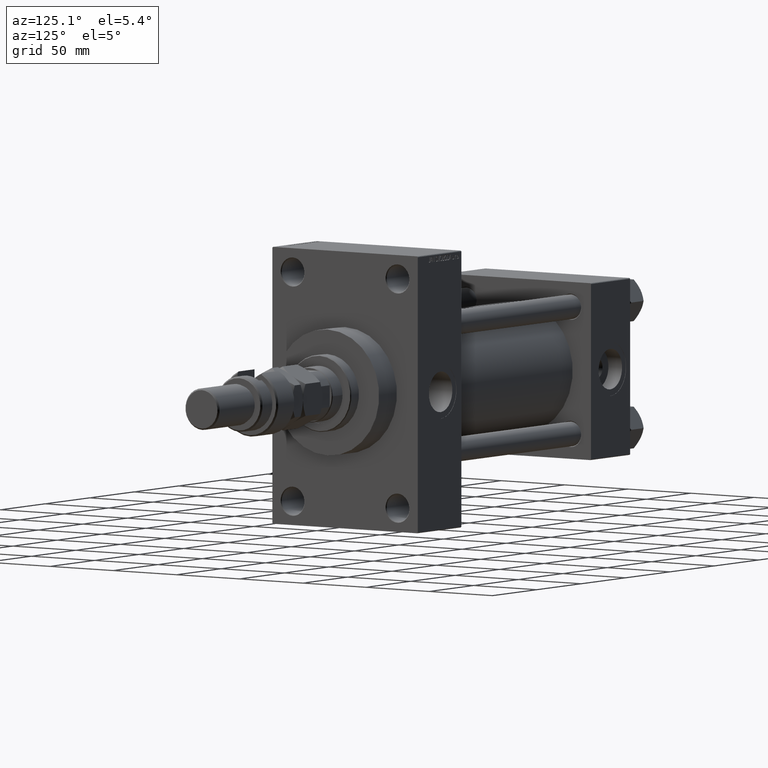
[diagram: clean part render]
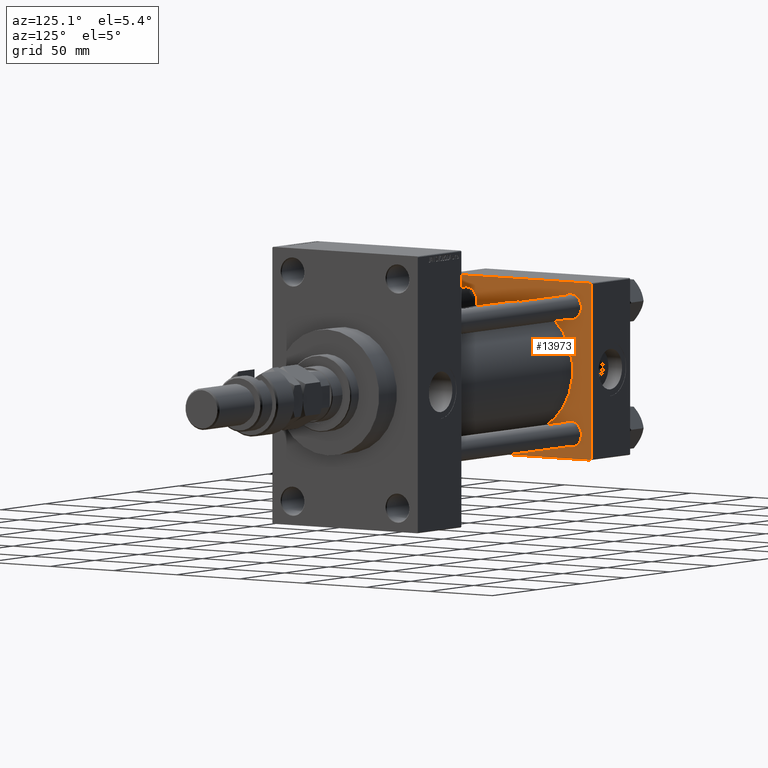
[diagram: same view with one face highlighted and labeled with its STEP entity id]
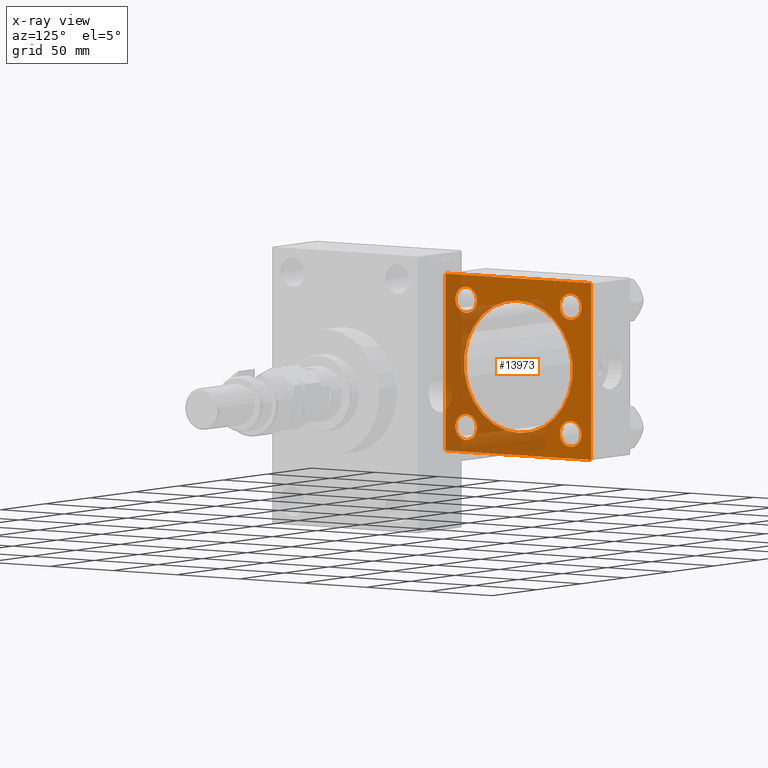
[diagram: x-ray of the same camera — body ghosted, the highlighted face saturated]
A machine part, auxiliary view. The second image highlights one B-rep face of the part: STEP entity #13973.
The next image is the same camera in x-ray: the body ghosted, the highlighted face saturated — about 45% of this face is hidden behind the body in this view.
In plain terms, the highlighted planar face has unit normal (-1, 0, 0).
Its self-contained STEP definition (entity closure, byte-faithful):
#216 = DIRECTION ( 'NONE',  ( 0.000000000000000000, 0.000000000000000000, 1.000000000000000000 ) ) ;
#304 = VERTEX_POINT ( 'NONE', #37298 ) ;
#805 = VERTEX_POINT ( 'NONE', #25521 ) ;
#1087 = DIRECTION ( 'NONE',  ( -1.000000000000000000, 0.000000000000000000, -0.000000000000000000 ) ) ;
#1795 = DIRECTION ( 'NONE',  ( 0.000000000000000000, -0.7071067811865573427, 0.7071067811865376918 ) ) ;
#2185 = EDGE_CURVE ( 'NONE', #47459, #6114, #3302, .T. ) ;
#2341 = CARTESIAN_POINT ( 'NONE',  ( 43.99999999999998579, -2.602085213965210642E-15, 0.000000000000000000 ) ) ;
#2685 = AXIS2_PLACEMENT_3D ( 'NONE', #42233, #25325, #46178 ) ;
#3089 = EDGE_CURVE ( 'NONE', #22003, #19756, #7575, .T. ) ;
#3099 = ORIENTED_EDGE ( 'NONE', *, *, #3089, .F. ) ;
#3132 = ORIENTED_EDGE ( 'NONE', *, *, #13571, .T. ) ;
#3302 = CIRCLE ( 'NONE', #4179, 8.500000000000007105 ) ;
#4036 = ORIENTED_EDGE ( 'NONE', *, *, #2185, .T. ) ;
#4099 = CARTESIAN_POINT ( 'NONE',  ( 44.00000000000000000, -57.00000000000003553, 57.49999999999999289 ) ) ;
#4179 = AXIS2_PLACEMENT_3D ( 'NONE', #41469, #17894, #25841 ) ;
#4331 = CIRCLE ( 'NONE', #49972, 8.500000000000007105 ) ;
#4389 = CARTESIAN_POINT ( 'NONE',  ( 44.00000000000000000, -41.34999999999998721, 41.35000000000000853 ) ) ;
#4462 = DIRECTION ( 'NONE',  ( 1.000000000000000000, -0.000000000000000000, 0.000000000000000000 ) ) ;
#4535 = ORIENTED_EDGE ( 'NONE', *, *, #15221, .T. ) ;
#4678 = CARTESIAN_POINT ( 'NONE',  ( 44.00000000000000000, 0.000000000000000000, 0.000000000000000000 ) ) ;
#4710 = ORIENTED_EDGE ( 'NONE', *, *, #14577, .T. ) ;
#5111 = DIRECTION ( 'NONE',  ( 0.000000000000000000, 0.000000000000000000, -1.000000000000000000 ) ) ;
#5273 = CARTESIAN_POINT ( 'NONE',  ( 44.00000000000000000, -57.00000000000000711, -57.50000000000000711 ) ) ;
#5828 = EDGE_LOOP ( 'NONE', ( #3099, #11021 ) ) ;
#5853 = CARTESIAN_POINT ( 'NONE',  ( 44.00000000000000000, 57.00000000000002132, -57.49999999999999289 ) ) ;
#6114 = VERTEX_POINT ( 'NONE', #25620 ) ;
#6850 = VECTOR ( 'NONE', #8230, 1000.000000000000000 ) ;
#6854 = ORIENTED_EDGE ( 'NONE', *, *, #18088, .T. ) ;
#7299 = CARTESIAN_POINT ( 'NONE',  ( 44.00000000000000000, -57.50000000000000711, -57.00000000000000711 ) ) ;
#7575 = CIRCLE ( 'NONE', #29569, 43.00000000000000000 ) ;
#7804 = ORIENTED_EDGE ( 'NONE', *, *, #50468, .T. ) ;
#8230 = DIRECTION ( 'NONE',  ( 0.000000000000000000, -1.000000000000000000, -1.206764157201257045E-16 ) ) ;
#8389 = FACE_BOUND ( 'NONE', #27343, .T. ) ;
#8497 = LINE ( 'NONE', #20914, #6850 ) ;
#8910 = DIRECTION ( 'NONE',  ( -1.000000000000000000, 0.000000000000000000, -0.000000000000000000 ) ) ;
#9298 = DIRECTION ( 'NONE',  ( 0.000000000000000000, 0.000000000000000000, 1.000000000000000000 ) ) ;
#9317 = EDGE_CURVE ( 'NONE', #32419, #31759, #49666, .T. ) ;
#9842 = CARTESIAN_POINT ( 'NONE',  ( 44.00000000000000000, -57.50000000000000711, 57.49999999999999289 ) ) ;
#10246 = ORIENTED_EDGE ( 'NONE', *, *, #48376, .T. ) ;
#10271 = CARTESIAN_POINT ( 'NONE',  ( 44.00000000000000000, 57.00000000000000711, 57.50000000000000711 ) ) ;
#10290 = DIRECTION ( 'NONE',  ( -0.000000000000000000, 0.7071067811865376918, 0.7071067811865573427 ) ) ;
#10737 = EDGE_CURVE ( 'NONE', #30836, #31155, #39176, .T. ) ;
#11021 = ORIENTED_EDGE ( 'NONE', *, *, #44022, .F. ) ;
#11290 = ORIENTED_EDGE ( 'NONE', *, *, #47416, .T. ) ;
#11689 = CIRCLE ( 'NONE', #41271, 8.500000000000007105 ) ;
#11836 = FACE_OUTER_BOUND ( 'NONE', #22482, .T. ) ;
#12101 = FACE_BOUND ( 'NONE', #43174, .T. ) ;
#12349 = FACE_BOUND ( 'NONE', #45079, .T. ) ;
#12515 = AXIS2_PLACEMENT_3D ( 'NONE', #49246, #1087, #9298 ) ;
#12624 = DIRECTION ( 'NONE',  ( 0.000000000000000000, 0.000000000000000000, 1.000000000000000000 ) ) ;
#12878 = DIRECTION ( 'NONE',  ( -0.000000000000000000, 0.000000000000000000, 1.000000000000000000 ) ) ;
#13199 = LINE ( 'NONE', #10271, #16574 ) ;
#13571 = EDGE_CURVE ( 'NONE', #24113, #18138, #30962, .T. ) ;
#13973 = ADVANCED_FACE ( 'NONE', ( #8389, #12101, #28258, #12349, #36716, #11836 ), #24530, .F. ) ;
#14577 = EDGE_CURVE ( 'NONE', #31759, #32419, #11689, .T. ) ;
#14918 = DIRECTION ( 'NONE',  ( 0.000000000000000000, 0.000000000000000000, 1.000000000000000000 ) ) ;
#15189 = DIRECTION ( 'NONE',  ( -1.000000000000000000, 0.000000000000000000, -0.000000000000000000 ) ) ;
#15221 = EDGE_CURVE ( 'NONE', #18138, #22533, #40653, .T. ) ;
#15500 = DIRECTION ( 'NONE',  ( -1.000000000000000000, 0.000000000000000000, -0.000000000000000000 ) ) ;
#15772 = DIRECTION ( 'NONE',  ( 0.000000000000000000, 0.000000000000000000, 1.000000000000000000 ) ) ;
#15929 = VECTOR ( 'NONE', #51568, 1000.000000000000114 ) ;
#16574 = VECTOR ( 'NONE', #1795, 1000.000000000000114 ) ;
#17894 = DIRECTION ( 'NONE',  ( -1.000000000000000000, 0.000000000000000000, -0.000000000000000000 ) ) ;
#18088 = EDGE_CURVE ( 'NONE', #23210, #805, #28772, .T. ) ;
#18138 = VERTEX_POINT ( 'NONE', #45340 ) ;
#19112 = ORIENTED_EDGE ( 'NONE', *, *, #21310, .T. ) ;
#19756 = VERTEX_POINT ( 'NONE', #48423 ) ;
#20260 = DIRECTION ( 'NONE',  ( -1.000000000000000000, 0.000000000000000000, -0.000000000000000000 ) ) ;
#20360 = EDGE_CURVE ( 'NONE', #32929, #39400, #4331, .T. ) ;
#20817 = CARTESIAN_POINT ( 'NONE',  ( 44.00000000000000000, 41.34999999999999432, 41.35000000000000142 ) ) ;
#20914 = CARTESIAN_POINT ( 'NONE',  ( 44.00000000000000000, 57.49999999999999289, 57.50000000000000711 ) ) ;
#21228 = CIRCLE ( 'NONE', #26302, 8.500000000000007105 ) ;
#21310 = EDGE_CURVE ( 'NONE', #39400, #32929, #38205, .T. ) ;
#21413 = DIRECTION ( 'NONE',  ( 1.000000000000000000, -0.000000000000000000, 0.000000000000000000 ) ) ;
#21924 = CARTESIAN_POINT ( 'NONE',  ( 44.00000000000000000, 57.49999999999999289, -57.00000000000000711 ) ) ;
#21934 = DIRECTION ( 'NONE',  ( 0.000000000000000000, 0.000000000000000000, 1.000000000000000000 ) ) ;
#22003 = VERTEX_POINT ( 'NONE', #42576 ) ;
#22058 = CARTESIAN_POINT ( 'NONE',  ( 44.00000000000000000, 41.34999999999999432, 32.84999999999999432 ) ) ;
#22358 = ORIENTED_EDGE ( 'NONE', *, *, #50935, .T. ) ;
#22482 = EDGE_LOOP ( 'NONE', ( #46624, #11290, #40226, #30712, #22358, #3132, #4535, #10246 ) ) ;
#22533 = VERTEX_POINT ( 'NONE', #7299 ) ;
#23210 = VERTEX_POINT ( 'NONE', #33036 ) ;
#24079 = CARTESIAN_POINT ( 'NONE',  ( 44.00000000000000000, -57.50000000000000711, 57.00000000000000711 ) ) ;
#24113 = VERTEX_POINT ( 'NONE', #4099 ) ;
#24530 = PLANE ( 'NONE',  #35384 ) ;
#25171 = AXIS2_PLACEMENT_3D ( 'NONE', #48629, #4462, #216 ) ;
#25226 = LINE ( 'NONE', #49027, #30063 ) ;
#25325 = DIRECTION ( 'NONE',  ( -1.000000000000000000, 0.000000000000000000, -0.000000000000000000 ) ) ;
#25521 = CARTESIAN_POINT ( 'NONE',  ( 44.00000000000000000, -41.34999999999998721, -49.85000000000002274 ) ) ;
#25620 = CARTESIAN_POINT ( 'NONE',  ( 44.00000000000000000, 41.34999999999999432, -49.85000000000001563 ) ) ;
#25841 = DIRECTION ( 'NONE',  ( 0.000000000000000000, 0.000000000000000000, 1.000000000000000000 ) ) ;
#25915 = LINE ( 'NONE', #44270, #43896 ) ;
#26302 = AXIS2_PLACEMENT_3D ( 'NONE', #31612, #15189, #14918 ) ;
#26488 = DIRECTION ( 'NONE',  ( 0.000000000000000000, -1.000000000000000000, -1.206764157201257045E-16 ) ) ;
#26873 = EDGE_CURVE ( 'NONE', #6114, #47459, #39106, .T. ) ;
#27343 = EDGE_LOOP ( 'NONE', ( #7804, #6854 ) ) ;
#28139 = AXIS2_PLACEMENT_3D ( 'NONE', #50184, #46198, #42252 ) ;
#28258 = FACE_BOUND ( 'NONE', #41324, .T. ) ;
#28772 = CIRCLE ( 'NONE', #29604, 8.500000000000007105 ) ;
#29569 = AXIS2_PLACEMENT_3D ( 'NONE', #2341, #21413, #21934 ) ;
#29604 = AXIS2_PLACEMENT_3D ( 'NONE', #43270, #15500, #48281 ) ;
#29745 = ORIENTED_EDGE ( 'NONE', *, *, #9317, .T. ) ;
#30063 = VECTOR ( 'NONE', #5111, 1000.000000000000000 ) ;
#30139 = CARTESIAN_POINT ( 'NONE',  ( 44.00000000000000000, 57.49999999999999289, -57.00000000000000711 ) ) ;
#30712 = ORIENTED_EDGE ( 'NONE', *, *, #37124, .T. ) ;
#30836 = VERTEX_POINT ( 'NONE', #5853 ) ;
#30962 = LINE ( 'NONE', #24079, #15929 ) ;
#31155 = VERTEX_POINT ( 'NONE', #5273 ) ;
#31612 = CARTESIAN_POINT ( 'NONE',  ( 44.00000000000000000, -41.34999999999998721, -41.35000000000000853 ) ) ;
#31759 = VERTEX_POINT ( 'NONE', #34711 ) ;
#32419 = VERTEX_POINT ( 'NONE', #22058 ) ;
#32602 = ORIENTED_EDGE ( 'NONE', *, *, #20360, .T. ) ;
#32929 = VERTEX_POINT ( 'NONE', #41025 ) ;
#33036 = CARTESIAN_POINT ( 'NONE',  ( 44.00000000000000000, -41.34999999999998721, -32.85000000000000142 ) ) ;
#34711 = CARTESIAN_POINT ( 'NONE',  ( 44.00000000000000000, 41.34999999999999432, 49.85000000000001563 ) ) ;
#35384 = AXIS2_PLACEMENT_3D ( 'NONE', #4678, #8910, #12878 ) ;
#35492 = EDGE_CURVE ( 'NONE', #36531, #39309, #25226, .T. ) ;
#36425 = DIRECTION ( 'NONE',  ( 0.000000000000000000, 0.000000000000000000, -1.000000000000000000 ) ) ;
#36531 = VERTEX_POINT ( 'NONE', #43988 ) ;
#36716 = FACE_BOUND ( 'NONE', #5828, .T. ) ;
#36972 = DIRECTION ( 'NONE',  ( -1.000000000000000000, 0.000000000000000000, -0.000000000000000000 ) ) ;
#37122 = VECTOR ( 'NONE', #10290, 1000.000000000000114 ) ;
#37124 = EDGE_CURVE ( 'NONE', #36531, #304, #13199, .T. ) ;
#37298 = CARTESIAN_POINT ( 'NONE',  ( 44.00000000000000000, 57.00000000000000711, 57.50000000000000711 ) ) ;
#38205 = CIRCLE ( 'NONE', #2685, 8.500000000000007105 ) ;
#38616 = VECTOR ( 'NONE', #26488, 1000.000000000000000 ) ;
#38866 = LINE ( 'NONE', #21924, #37122 ) ;
#39106 = CIRCLE ( 'NONE', #28139, 8.500000000000007105 ) ;
#39176 = LINE ( 'NONE', #47873, #38616 ) ;
#39309 = VERTEX_POINT ( 'NONE', #30139 ) ;
#39400 = VERTEX_POINT ( 'NONE', #40690 ) ;
#40226 = ORIENTED_EDGE ( 'NONE', *, *, #35492, .F. ) ;
#40405 = CIRCLE ( 'NONE', #25171, 43.00000000000000000 ) ;
#40653 = LINE ( 'NONE', #9842, #45508 ) ;
#40690 = CARTESIAN_POINT ( 'NONE',  ( 44.00000000000000000, -41.34999999999998721, 32.85000000000000142 ) ) ;
#41025 = CARTESIAN_POINT ( 'NONE',  ( 44.00000000000000000, -41.34999999999998721, 49.85000000000002274 ) ) ;
#41271 = AXIS2_PLACEMENT_3D ( 'NONE', #20817, #36972, #12624 ) ;
#41324 = EDGE_LOOP ( 'NONE', ( #19112, #32602 ) ) ;
#41469 = CARTESIAN_POINT ( 'NONE',  ( 44.00000000000000000, 41.34999999999999432, -41.35000000000000142 ) ) ;
#42233 = CARTESIAN_POINT ( 'NONE',  ( 44.00000000000000000, -41.34999999999998721, 41.35000000000000853 ) ) ;
#42252 = DIRECTION ( 'NONE',  ( 0.000000000000000000, 0.000000000000000000, 1.000000000000000000 ) ) ;
#42576 = CARTESIAN_POINT ( 'NONE',  ( 43.99999999999998579, -2.602085213965210642E-15, 43.00000000000000000 ) ) ;
#43174 = EDGE_LOOP ( 'NONE', ( #52153, #4036 ) ) ;
#43270 = CARTESIAN_POINT ( 'NONE',  ( 44.00000000000000000, -41.34999999999998721, -41.35000000000000853 ) ) ;
#43896 = VECTOR ( 'NONE', #49980, 1000.000000000000114 ) ;
#43988 = CARTESIAN_POINT ( 'NONE',  ( 44.00000000000000000, 57.49999999999999289, 57.00000000000003553 ) ) ;
#44022 = EDGE_CURVE ( 'NONE', #19756, #22003, #40405, .T. ) ;
#44270 = CARTESIAN_POINT ( 'NONE',  ( 44.00000000000000000, -57.00000000000000711, -57.50000000000000711 ) ) ;
#45079 = EDGE_LOOP ( 'NONE', ( #29745, #4710 ) ) ;
#45340 = CARTESIAN_POINT ( 'NONE',  ( 44.00000000000000000, -57.50000000000000711, 57.00000000000000711 ) ) ;
#45508 = VECTOR ( 'NONE', #36425, 1000.000000000000000 ) ;
#46178 = DIRECTION ( 'NONE',  ( 0.000000000000000000, 0.000000000000000000, 1.000000000000000000 ) ) ;
#46198 = DIRECTION ( 'NONE',  ( -1.000000000000000000, 0.000000000000000000, -0.000000000000000000 ) ) ;
#46624 = ORIENTED_EDGE ( 'NONE', *, *, #10737, .F. ) ;
#47416 = EDGE_CURVE ( 'NONE', #30836, #39309, #38866, .T. ) ;
#47459 = VERTEX_POINT ( 'NONE', #50747 ) ;
#47873 = CARTESIAN_POINT ( 'NONE',  ( 44.00000000000000000, 57.49999999999999289, -57.49999999999999289 ) ) ;
#48281 = DIRECTION ( 'NONE',  ( 0.000000000000000000, 0.000000000000000000, 1.000000000000000000 ) ) ;
#48376 = EDGE_CURVE ( 'NONE', #22533, #31155, #25915, .T. ) ;
#48423 = CARTESIAN_POINT ( 'NONE',  ( 43.99999999999998579, 2.663896022368408223E-15, -43.00000000000000000 ) ) ;
#48629 = CARTESIAN_POINT ( 'NONE',  ( 43.99999999999998579, -2.602085213965210642E-15, 0.000000000000000000 ) ) ;
#49027 = CARTESIAN_POINT ( 'NONE',  ( 44.00000000000000000, 57.49999999999999289, 57.50000000000000711 ) ) ;
#49246 = CARTESIAN_POINT ( 'NONE',  ( 44.00000000000000000, 41.34999999999999432, 41.35000000000000142 ) ) ;
#49666 = CIRCLE ( 'NONE', #12515, 8.500000000000007105 ) ;
#49972 = AXIS2_PLACEMENT_3D ( 'NONE', #4389, #20260, #15772 ) ;
#49980 = DIRECTION ( 'NONE',  ( 0.000000000000000000, 0.7071067811865474617, -0.7071067811865474617 ) ) ;
#50184 = CARTESIAN_POINT ( 'NONE',  ( 44.00000000000000000, 41.34999999999999432, -41.35000000000000142 ) ) ;
#50468 = EDGE_CURVE ( 'NONE', #805, #23210, #21228, .T. ) ;
#50747 = CARTESIAN_POINT ( 'NONE',  ( 44.00000000000000000, 41.34999999999999432, -32.84999999999999432 ) ) ;
#50935 = EDGE_CURVE ( 'NONE', #304, #24113, #8497, .T. ) ;
#51568 = DIRECTION ( 'NONE',  ( -0.000000000000000000, -0.7071067811865376918, -0.7071067811865573427 ) ) ;
#52153 = ORIENTED_EDGE ( 'NONE', *, *, #26873, .T. ) ;